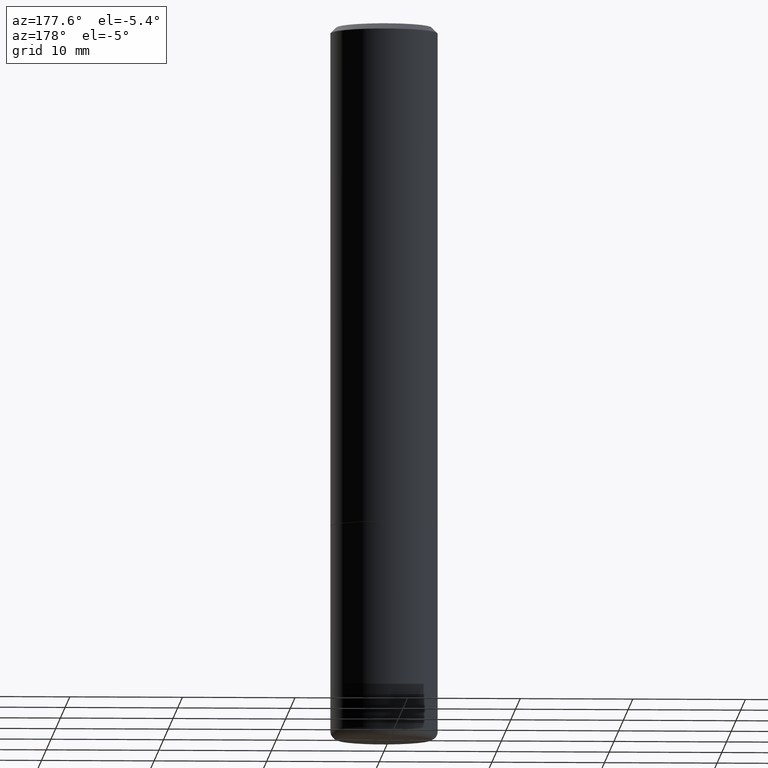
[diagram: clean part render]
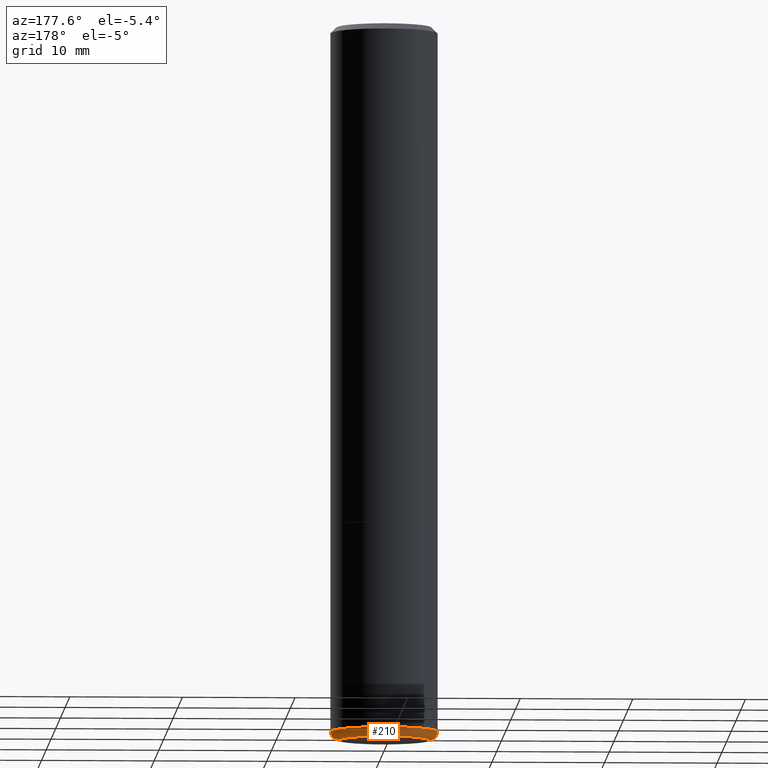
[diagram: same view with one face highlighted and labeled with its STEP entity id]
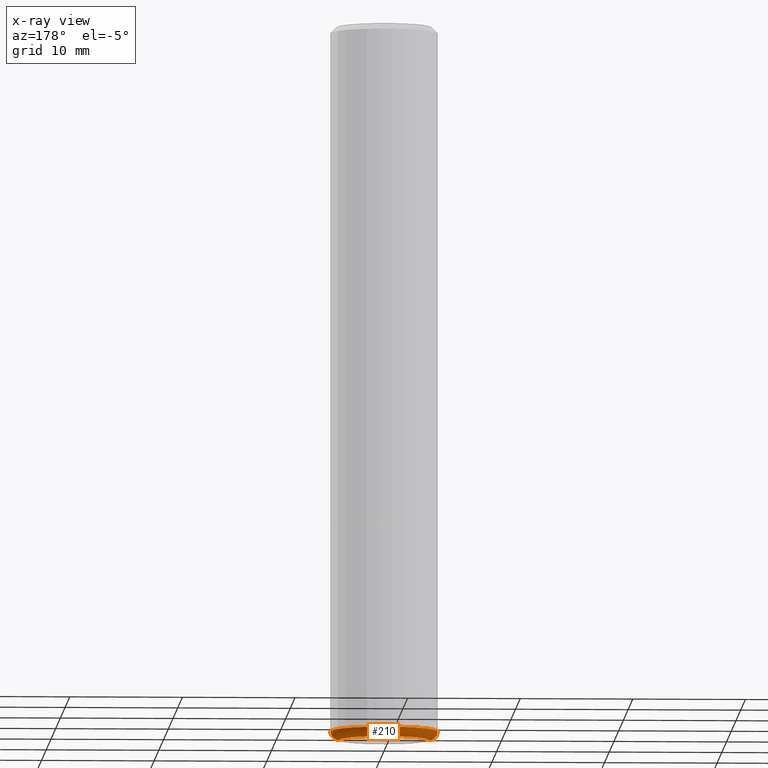
[diagram: x-ray of the same camera — body ghosted, the highlighted face saturated]
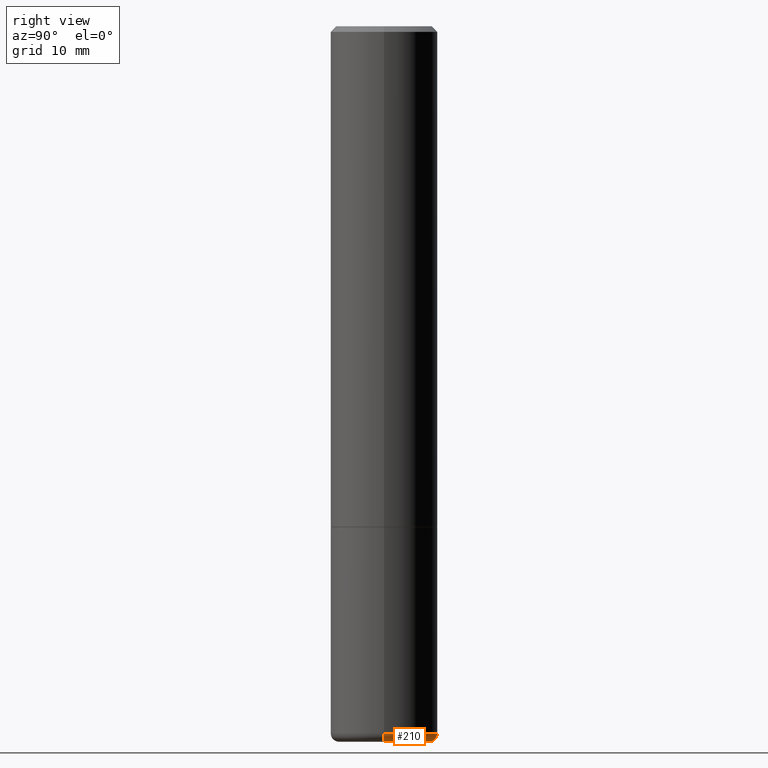
[diagram: same view with one face highlighted and labeled with its STEP entity id]
A machine part, auxiliary view. The second image highlights one B-rep face of the part: STEP entity #210.
The next image is the same camera in x-ray: the body ghosted, the highlighted face saturated — about 0% of this face is hidden behind the body in this view.
A second angle (right view) of the same face is appended — the face is thin or edge-on in the first view.
In plain terms, the highlighted toroidal blend (fillet) surface has major radius 4.0005 mm and minor (blend) radius 0.762 mm.
Its self-contained STEP definition (entity closure, byte-faithful):
#5 = DIRECTION ( 'NONE',  ( 7.105427357601001859E-15, 1.000000000000000000, -3.491481338843145583E-15 ) ) ;
#7 = CIRCLE ( 'NONE', #407, 0.02999999999999995379 ) ;
#14 = DIRECTION ( 'NONE',  ( 1.000000000000000000, -6.982962677686269077E-15, 4.883557194083113462E-29 ) ) ;
#21 = EDGE_LOOP ( 'NONE', ( #381, #186, #91, #349 ) ) ;
#47 = CARTESIAN_POINT ( 'NONE',  ( -0.1874999999999999722, -7.291691277392382147E-15, -2.470000000000000195 ) ) ;
#51 = CARTESIAN_POINT ( 'NONE',  ( 6.040307951277287977E-29, -8.623958906942569995E-15, -2.470000000000000195 ) ) ;
#57 = DIRECTION ( 'NONE',  ( -2.445468806185136597E-29, 3.491481338843145583E-15, 1.000000000000000000 ) ) ;
#73 = DIRECTION ( 'NONE',  ( -2.445468806185136597E-29, 3.491481338843145583E-15, 1.000000000000000000 ) ) ;
#79 = CARTESIAN_POINT ( 'NONE',  ( 0.1874999999999999722, -9.933264409008746581E-15, -2.470000000000000195 ) ) ;
#81 = AXIS2_PLACEMENT_3D ( 'NONE', #51, #73, #14 ) ;
#91 = ORIENTED_EDGE ( 'NONE', *, *, #401, .F. ) ;
#101 = TOROIDAL_SURFACE ( 'NONE', #81, 0.1575000000000000289, 0.02999999999999997113 ) ;
#108 = CIRCLE ( 'NONE', #316, 0.02999999999999995379 ) ;
#130 = EDGE_CURVE ( 'NONE', #235, #301, #108, .T. ) ;
#132 = CARTESIAN_POINT ( 'NONE',  ( 6.113672015462842613E-29, -8.728703347107864943E-15, -2.500000000000000000 ) ) ;
#136 = DIRECTION ( 'NONE',  ( -6.982962677686266711E-15, -1.000000000000000000, 3.491481338843145583E-15 ) ) ;
#141 = FACE_OUTER_BOUND ( 'NONE', #21, .T. ) ;
#177 = AXIS2_PLACEMENT_3D ( 'NONE', #132, #201, #271 ) ;
#179 = EDGE_CURVE ( 'NONE', #181, #188, #7, .T. ) ;
#181 = VERTEX_POINT ( 'NONE', #397 ) ;
#186 = ORIENTED_EDGE ( 'NONE', *, *, #179, .T. ) ;
#188 = VERTEX_POINT ( 'NONE', #47 ) ;
#200 = EDGE_CURVE ( 'NONE', #235, #181, #277, .T. ) ;
#201 = DIRECTION ( 'NONE',  ( -2.445468806185136597E-29, 3.491481338843145583E-15, 1.000000000000000000 ) ) ;
#210 = ADVANCED_FACE ( 'NONE', ( #141 ), #101, .T. ) ;
#235 = VERTEX_POINT ( 'NONE', #280 ) ;
#257 = DIRECTION ( 'NONE',  ( 1.000000000000000000, -6.982962677686266711E-15, 0.000000000000000000 ) ) ;
#271 = DIRECTION ( 'NONE',  ( 1.000000000000000000, -6.982962677686267499E-15, 0.000000000000000000 ) ) ;
#273 = CARTESIAN_POINT ( 'NONE',  ( 0.1575000000000000289, -9.723775528678158264E-15, -2.470000000000000195 ) ) ;
#277 = CIRCLE ( 'NONE', #177, 0.1575000000000000289 ) ;
#280 = CARTESIAN_POINT ( 'NONE',  ( 0.1575000000000000289, -9.828519968843451634E-15, -2.500000000000000000 ) ) ;
#284 = AXIS2_PLACEMENT_3D ( 'NONE', #321, #57, #257 ) ;
#301 = VERTEX_POINT ( 'NONE', #79 ) ;
#303 = CARTESIAN_POINT ( 'NONE',  ( -0.1575000000000000289, -7.504854098120412392E-15, -2.470000000000000195 ) ) ;
#306 = DIRECTION ( 'NONE',  ( -1.000000000000000000, 7.105427357601001859E-15, 0.000000000000000000 ) ) ;
#316 = AXIS2_PLACEMENT_3D ( 'NONE', #273, #136, #368 ) ;
#317 = CIRCLE ( 'NONE', #284, 0.1875000000000000278 ) ;
#321 = CARTESIAN_POINT ( 'NONE',  ( 6.040307951277287977E-29, -8.623958906942569995E-15, -2.470000000000000195 ) ) ;
#349 = ORIENTED_EDGE ( 'NONE', *, *, #130, .F. ) ;
#368 = DIRECTION ( 'NONE',  ( 1.000000000000000000, -6.982962677686279332E-15, 0.000000000000000000 ) ) ;
#381 = ORIENTED_EDGE ( 'NONE', *, *, #200, .T. ) ;
#397 = CARTESIAN_POINT ( 'NONE',  ( -0.1575000000000000289, -7.450644907839044743E-15, -2.500000000000000000 ) ) ;
#401 = EDGE_CURVE ( 'NONE', #301, #188, #317, .T. ) ;
#407 = AXIS2_PLACEMENT_3D ( 'NONE', #303, #5, #306 ) ;